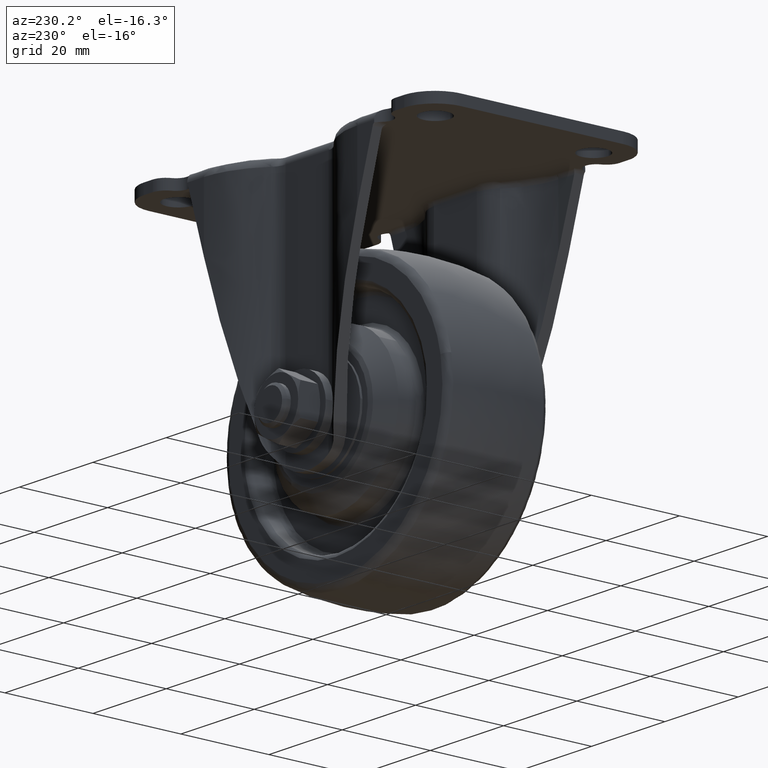
[diagram: clean part render]
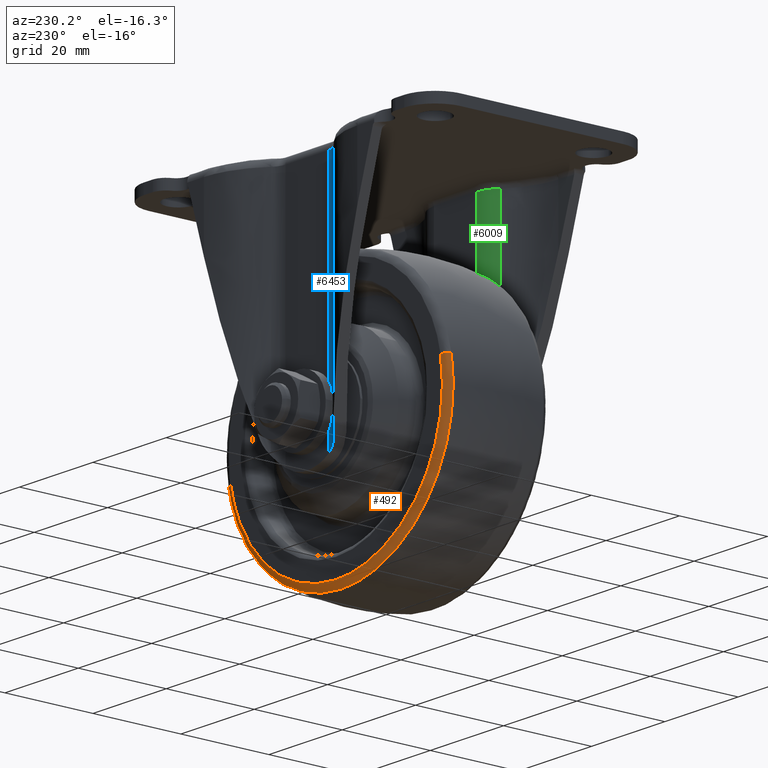
[diagram: same view with three faces highlighted in distinct colors, each labeled with its STEP entity id]
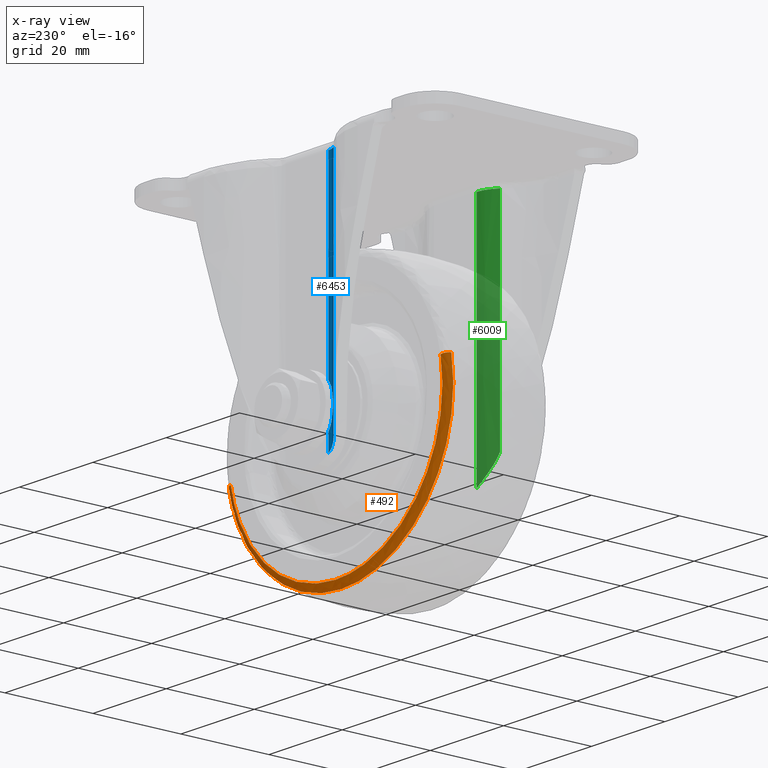
[diagram: x-ray of the same camera — body ghosted, the three highlighted faces saturated]
A machine part, auxiliary view with three faces highlighted in distinct colors.
The next image is the same camera in x-ray (body ghosted, the three faces saturated) — at least one of them is partly hidden behind the body in this view.
Their STEP definitions:

[orange] entity #492 — the highlighted face is a freeform B-spline surface patch.
#260=CARTESIAN_POINT('',(-28.622830873925370,11.500000000000000,5.460098896945127));
#261=VERTEX_POINT('',#260);
#262=CARTESIAN_POINT('',(0.0,11.500000000000000,-29.138960108642578));
#263=VERTEX_POINT('',#262);
#264=CARTESIAN_POINT('',(-28.622830873925370,11.499999999999995,5.460098896945127));
#265=CARTESIAN_POINT('',(-29.138962001786769,11.500000000000000,2.754444772378669));
#266=CARTESIAN_POINT('',(-29.138962001698879,11.500000000000000,0.000001891681499));
#267=CARTESIAN_POINT('',(-29.138962000769126,11.500000000000002,-29.138960108495844));
#268=CARTESIAN_POINT('',(0.0,11.500000000000000,-29.138960108642578));
#276=(BOUNDED_CURVE()B_SPLINE_CURVE(2,(#264,#265,#266,#267,#268),.UNSPECIFIED.,.F.,.U.)B_SPLINE_CURVE_WITH_KNOTS((3,2,3),(0.717838633740406,0.750000000000000,1.0),.UNSPECIFIED.)CURVE()GEOMETRIC_REPRESENTATION_ITEM()RATIONAL_B_SPLINE_CURVE((0.934335795160088,0.962320615659157,1.0,0.707106781186548,1.0))REPRESENTATION_ITEM(''));
#277=EDGE_CURVE('',#261,#263,#276,.T.);
#294=CARTESIAN_POINT('',(28.622830873925370,11.500000000000000,-5.460095114230292));
#295=VERTEX_POINT('',#294);
#311=CARTESIAN_POINT('',(0.0,11.500000000000000,-29.138960108642578));
#312=CARTESIAN_POINT('',(24.105845798279582,11.500000000000000,-29.138960108819948));
#313=CARTESIAN_POINT('',(28.622830873925373,11.499999999999996,-5.460095114230292));
#321=(BOUNDED_CURVE()B_SPLINE_CURVE(2,(#311,#312,#313),.UNSPECIFIED.,.F.,.U.)B_SPLINE_CURVE_WITH_KNOTS((3,3),(0.0,0.217838633740406),.UNSPECIFIED.)CURVE()GEOMETRIC_REPRESENTATION_ITEM()RATIONAL_B_SPLINE_CURVE((1.0,0.744786165527391,0.934335795160088))REPRESENTATION_ITEM(''));
#322=EDGE_CURVE('',#263,#295,#321,.T.);
#364=CARTESIAN_POINT('',(-30.074577081945659,10.256388594107840,5.737034297189368));
#365=VERTEX_POINT('',#364);
#366=CARTESIAN_POINT('',(-28.622830873925370,11.499999999999996,5.460098896945127));
#367=CARTESIAN_POINT('',(-29.862658961563142,11.499999866942064,5.696608753675314));
#368=CARTESIAN_POINT('',(-30.074577081945659,10.256388594107843,5.737034297189368));
#376=(BOUNDED_CURVE()B_SPLINE_CURVE(2,(#366,#367,#368),.UNSPECIFIED.,.F.,.U.)B_SPLINE_CURVE_WITH_KNOTS((3,3),(-1.699374432698718,-0.296092292257900),.UNSPECIFIED.)CURVE()GEOMETRIC_REPRESENTATION_ITEM()RATIONAL_B_SPLINE_CURVE((0.891308979517948,0.682507571634207,0.892662409336264))REPRESENTATION_ITEM(''));
#377=EDGE_CURVE('',#261,#365,#376,.T.);
#394=CARTESIAN_POINT('',(30.074577058850991,10.256388590112140,-5.737030510068976));
#395=VERTEX_POINT('',#394);
#411=CARTESIAN_POINT('',(28.622830873925377,11.500000000000004,-5.460095114230292));
#412=CARTESIAN_POINT('',(29.862658949954081,11.499999864903941,-5.696604968745909));
#413=CARTESIAN_POINT('',(30.074577058850995,10.256388590112142,-5.737030510068976));
#421=(BOUNDED_CURVE()B_SPLINE_CURVE(2,(#411,#412,#413),.UNSPECIFIED.,.F.,.U.)B_SPLINE_CURVE_WITH_KNOTS((3,3),(-1.699374432698722,-0.296092292317341),.UNSPECIFIED.)CURVE()GEOMETRIC_REPRESENTATION_ITEM()RATIONAL_B_SPLINE_CURVE((0.891308979517949,0.682507571643051,0.892662409318461))REPRESENTATION_ITEM(''));
#422=EDGE_CURVE('',#295,#395,#421,.T.);
#427=CARTESIAN_POINT('',(-28.377032285962343,11.496967011210492,6.239816694578594));
#428=CARTESIAN_POINT('',(-28.452662779311627,11.496967011210499,5.843347764111499));
#429=CARTESIAN_POINT('',(-33.971411358845060,11.496967011210490,-23.086945427810413));
#430=CARTESIAN_POINT('',(-5.442232019838624,11.496967011210494,-28.529177447649040));
#431=CARTESIAN_POINT('',(23.086947319167820,11.496967011210490,-33.971409467487668));
#432=CARTESIAN_POINT('',(28.605695898696741,11.496967011210492,-5.041116275589502));
#433=CARTESIAN_POINT('',(28.681326392041591,11.496967011210488,-4.644647345145622));
#434=CARTESIAN_POINT('',(-29.775734164806096,11.588141452286727,6.547376717097933));
#435=CARTESIAN_POINT('',(-29.855092479728796,11.588141452286726,6.131365861585302));
#436=CARTESIAN_POINT('',(-35.645859779517146,11.588141452286726,-24.224899399412319));
#437=CARTESIAN_POINT('',(-5.710479244373711,11.588141452286726,-29.935378643786031));
#438=CARTESIAN_POINT('',(24.224901290769740,11.588141452286726,-35.645857888159753));
#439=CARTESIAN_POINT('',(30.015668590553346,11.588141452286726,-5.289592627187049));
#440=CARTESIAN_POINT('',(30.095026905471411,11.588141452286726,-4.873581771698761));
#441=CARTESIAN_POINT('',(-29.927176420721413,10.162081759263776,6.580677296974322));
#442=CARTESIAN_POINT('',(-30.006938359688164,10.162081759263776,6.162550570125134));
#443=CARTESIAN_POINT('',(-35.827158060498988,10.162081759263778,-24.348109583936889));
#444=CARTESIAN_POINT('',(-5.739523292602339,10.162081759263776,-30.087632876539235));
#445=CARTESIAN_POINT('',(24.348111475294310,10.162081759263778,-35.827156169141567));
#446=CARTESIAN_POINT('',(30.168331176100374,10.162081759263776,-5.316496015104598));
#447=CARTESIAN_POINT('',(30.248093115062442,10.162081759263776,-4.898369288279888));
#455=(BOUNDED_SURFACE()B_SPLINE_SURFACE(2,2,((#427,#434,#441),(#428,#435,#442),(#429,#436,#443),(#430,#437,#444),(#431,#438,#445),(#432,#439,#446),(#433,#440,#447)),.UNSPECIFIED.,.F.,.F.,.U.)B_SPLINE_SURFACE_WITH_KNOTS((3,1,2,1,3),(3,3),(0.0,1.014994859961472,51.764737855590823,102.514480851220200,103.529475711121190),(0.0,2.407700788948126),.UNSPECIFIED.)GEOMETRIC_REPRESENTATION_ITEM()RATIONAL_B_SPLINE_SURFACE(((0.923912507992800,0.668273983381673,0.925418730269164),(0.918563026894694,0.664404656999003,0.920060528098957),(0.645739490904179,0.467069011492106,0.646792217431327),(0.913213545796588,0.660535330616332,0.914702325928751),(0.645739490904179,0.467069011492106,0.646792217431327),(0.918563026894375,0.664404656998772,0.920060528098638),(0.923912507992163,0.668273983381212,0.925418730268525)))REPRESENTATION_ITEM('')SURFACE());
#456=ORIENTED_EDGE('',*,*,#322,.T.);
#457=ORIENTED_EDGE('',*,*,#422,.T.);
#458=CARTESIAN_POINT('',(0.0,10.256388305395840,-30.616886291153921));
#459=VERTEX_POINT('',#458);
#460=CARTESIAN_POINT('',(0.0,10.256388305395840,-30.616886291153921));
#461=CARTESIAN_POINT('',(25.328490959784702,10.256388439002531,-30.616886435352537));
#462=CARTESIAN_POINT('',(30.074577058850991,10.256388590112142,-5.737030510068977));
#470=(BOUNDED_CURVE()B_SPLINE_CURVE(2,(#460,#461,#462),.UNSPECIFIED.,.F.,.U.)B_SPLINE_CURVE_WITH_KNOTS((3,3),(0.0,0.217838636712735),.UNSPECIFIED.)CURVE()GEOMETRIC_REPRESENTATION_ITEM()RATIONAL_B_SPLINE_CURVE((1.0,0.744786162045091,0.934335800332761))REPRESENTATION_ITEM(''));
#471=EDGE_CURVE('',#459,#395,#470,.T.);
#472=ORIENTED_EDGE('',*,*,#471,.F.);
#473=CARTESIAN_POINT('',(-30.074577081945659,10.256388594107843,5.737034297189368));
#474=CARTESIAN_POINT('',(-30.616886075504585,10.256388581819191,2.894149936634093));
#475=CARTESIAN_POINT('',(-30.616886005140390,10.256388567346280,0.000002276259664));
#476=CARTESIAN_POINT('',(-30.616885260764871,10.256388414238813,-30.616886173683636));
#477=CARTESIAN_POINT('',(0.0,10.256388305395840,-30.616886291153921));
#485=(BOUNDED_CURVE()B_SPLINE_CURVE(2,(#473,#474,#475,#476,#477),.UNSPECIFIED.,.F.,.U.)B_SPLINE_CURVE_WITH_KNOTS((3,2,3),(0.717838638042128,0.750000000000000,1.0),.UNSPECIFIED.)CURVE()GEOMETRIC_REPRESENTATION_ITEM()RATIONAL_B_SPLINE_CURVE((0.934335802646271,0.962320620698938,1.0,0.707106781186548,1.0))REPRESENTATION_ITEM(''));
#486=EDGE_CURVE('',#365,#459,#485,.T.);
#487=ORIENTED_EDGE('',*,*,#486,.F.);
#488=ORIENTED_EDGE('',*,*,#377,.F.);
#489=ORIENTED_EDGE('',*,*,#277,.T.);
#490=EDGE_LOOP('',(#456,#457,#472,#487,#488,#489));
#491=FACE_OUTER_BOUND('',#490,.T.);
#492=ADVANCED_FACE('',(#491),#455,.T.);

[blue] entity #6453 — the highlighted face is a freeform B-spline surface patch.
#5345=CARTESIAN_POINT('',(-5.816739000000100,18.0,4.734506036101150));
#5346=VERTEX_POINT('',#5345);
#5347=CARTESIAN_POINT('',(-5.816739000000100,18.0,-4.734506036101110));
#5348=VERTEX_POINT('',#5347);
#5362=CARTESIAN_POINT('',(-5.816739000000100,18.0,4.734506036101110));
#5363=CARTESIAN_POINT('',(-5.953191114297916,18.0,4.566863133374513));
#5364=CARTESIAN_POINT('',(-6.081306417616029,18.006934118123940,4.394696028145683));
#5365=CARTESIAN_POINT('',(-6.321608441511902,18.030153919546219,4.041399217714424));
#5366=CARTESIAN_POINT('',(-6.433792592094890,18.046457141635280,3.860269376614748));
#5367=CARTESIAN_POINT('',(-6.642504222138824,18.084726310160431,3.488911640754547));
#5368=CARTESIAN_POINT('',(-6.739031386322957,18.106702313513360,3.298684375446383));
#5369=CARTESIAN_POINT('',(-6.871967506520002,18.141426386681779,3.006248201329735));
#5370=CARTESIAN_POINT('',(-6.914277083248583,18.153293582661931,2.907606835476086));
#5371=CARTESIAN_POINT('',(-6.994261507954834,18.177019376372581,2.709559198833854));
#5372=CARTESIAN_POINT('',(-7.032031254327816,18.188901987263620,2.609950746802815));
#5373=CARTESIAN_POINT('',(-7.209942098921687,18.247475737193639,2.108942467558933));
#5374=CARTESIAN_POINT('',(-7.317559522974843,18.291388569576419,1.698696431649883));
#5375=CARTESIAN_POINT('',(-7.408492641326100,18.330298151507591,1.172871355740173));
#5376=CARTESIAN_POINT('',(-7.424481781002903,18.337297517896129,1.067052266358492));
#5377=CARTESIAN_POINT('',(-7.451986777233195,18.349494414559722,0.854062835818572));
#5378=CARTESIAN_POINT('',(-7.463520329163599,18.354699910613508,0.746614216293751));
#5379=CARTESIAN_POINT('',(-7.491031193235266,18.367211594006321,0.425118370830121));
#5380=CARTESIAN_POINT('',(-7.500040690051749,18.371433420440660,0.211494240903380));
#5381=CARTESIAN_POINT('',(-7.499959034212766,18.371395541196211,-0.214370360585483));
#5382=CARTESIAN_POINT('',(-7.490866953089177,18.367137554856320,-0.426610819557826));
#5383=CARTESIAN_POINT('',(-7.454732622064049,18.350702691924461,-0.849732919087734));
#5384=CARTESIAN_POINT('',(-7.427690888532755,18.338527640196531,-1.060614642014985));
#5385=CARTESIAN_POINT('',(-7.373478334112706,18.315308818527718,-1.375932809036382));
#5386=CARTESIAN_POINT('',(-7.353129309560440,18.306748819537450,-1.480871412149996));
#5387=CARTESIAN_POINT('',(-7.307803136333410,18.288217785666902,-1.690415364055679));
#5388=CARTESIAN_POINT('',(-7.282791288599532,18.278235148414190,-1.795105017692332));
#5389=CARTESIAN_POINT('',(-7.201522964132941,18.246901937557581,-2.105675879248216));
#5390=CARTESIAN_POINT('',(-7.138853570794026,18.224076501402941,-2.309067560378710));
#5391=CARTESIAN_POINT('',(-6.925900295182709,18.153949812662219,-2.908951411714483));
#5392=CARTESIAN_POINT('',(-6.750913984023052,18.104787435234879,-3.295227302571222));
#5393=CARTESIAN_POINT('',(-6.489085269015139,18.056551542921611,-3.762078220034280));
#5394=CARTESIAN_POINT('',(-6.434440984814290,18.047569199235340,-3.854806146876099));
#5395=CARTESIAN_POINT('',(-6.321291075587495,18.031537806669050,-4.037677594205553));
#5396=CARTESIAN_POINT('',(-6.262798196495085,18.024485548965501,-4.127820848803968));
#5397=CARTESIAN_POINT('',(-6.081559606207798,18.006930269181911,-4.394407536348077));
#5398=CARTESIAN_POINT('',(-5.953067068110242,18.0,-4.567015534552620));
#5399=CARTESIAN_POINT('',(-5.816739000000100,18.0,-4.734506036101110));
#5400=B_SPLINE_CURVE_WITH_KNOTS('',3,(#5362,#5363,#5364,#5365,#5366,#5367,#5368,#5369,#5370,#5371,#5372,#5373,#5374,#5375,#5376,#5377,#5378,#5379,#5380,#5381,#5382,#5383,#5384,#5385,#5386,#5387,#5388,#5389,#5390,#5391,#5392,#5393,#5394,#5395,#5396,#5397,#5398,#5399),.UNSPECIFIED.,.F.,.U.,(4,2,2,2,2,2,2,2,2,2,2,2,2,2,2,2,2,2,4),(0.0,0.062500000000000,0.125000000000000,0.187500000000000,0.218750000000000,0.249999999999999,0.374999999999999,0.406250000000000,0.437500000000000,0.500000000000000,0.562500000000000,0.625000000000000,0.656250000000000,0.687500000000000,0.750000000000000,0.875000000000000,0.906250000000000,0.937500000000000,1.0),.UNSPECIFIED.);
#5401=EDGE_CURVE('',#5346,#5348,#5400,.T.);
#6346=CARTESIAN_POINT('',(-8.562133521472699,19.090909139903399,46.500000000000000));
#6347=VERTEX_POINT('',#6346);
#6361=CARTESIAN_POINT('',(-8.562133521472541,19.090909139903651,-6.077817828832770));
#6362=VERTEX_POINT('',#6361);
#6363=CARTESIAN_POINT('',(-8.562133521472541,19.090909139903651,-6.077817828832770));
#6364=CARTESIAN_POINT('',(-8.562133521472699,19.090909139903399,46.500000000000000));
#6365=QUASI_UNIFORM_CURVE('',1,(#6363,#6364),.UNSPECIFIED.,.F.,.U.);
#6366=EDGE_CURVE('',#6362,#6347,#6365,.T.);
#6387=CARTESIAN_POINT('',(-5.781832858006608,18.000152307743321,-10.122638642526720));
#6388=CARTESIAN_POINT('',(-5.781832858006608,18.000152307743321,47.915565966063170));
#6389=CARTESIAN_POINT('',(-7.477919665576843,17.985350782412006,-10.122638642526717));
#6390=CARTESIAN_POINT('',(-7.477919665576843,17.985350782412006,47.915565966063170));
#6391=CARTESIAN_POINT('',(-8.667663561442952,19.194250698126812,-10.122638642526715));
#6392=CARTESIAN_POINT('',(-8.667663561442952,19.194250698126812,47.915565966063170));
#6400=(BOUNDED_SURFACE()B_SPLINE_SURFACE(1,2,((#6387,#6389,#6391),(#6388,#6390,#6392)),.UNSPECIFIED.,.F.,.F.,.U.)B_SPLINE_SURFACE_WITH_KNOTS((2,2),(3,3),(0.0,58.038204608589893),(0.0,3.252148872393323),.UNSPECIFIED.)GEOMETRIC_REPRESENTATION_ITEM()RATIONAL_B_SPLINE_SURFACE(((1.0,0.918948723321962,0.996308716064249),(1.0,0.918948723321962,0.996308716064249)))REPRESENTATION_ITEM('')SURFACE());
#6401=CARTESIAN_POINT('',(-5.816739000000100,18.0,46.500000000000000));
#6402=VERTEX_POINT('',#6401);
#6403=CARTESIAN_POINT('',(-5.816739000000100,18.0,4.734506036101150));
#6404=CARTESIAN_POINT('',(-5.816739000000100,18.0,46.500000000000000));
#6405=QUASI_UNIFORM_CURVE('',1,(#6403,#6404),.UNSPECIFIED.,.F.,.U.);
#6406=EDGE_CURVE('',#5346,#6402,#6405,.T.);
#6407=ORIENTED_EDGE('',*,*,#6406,.F.);
#6408=ORIENTED_EDGE('',*,*,#5401,.T.);
#6409=CARTESIAN_POINT('',(-5.816739000000100,18.0,-8.741598675635819));
#6410=VERTEX_POINT('',#6409);
#6411=CARTESIAN_POINT('',(-5.816739000000100,18.0,-8.741598675635819));
#6412=CARTESIAN_POINT('',(-5.816739000000100,18.0,-4.734506036101110));
#6413=QUASI_UNIFORM_CURVE('',1,(#6411,#6412),.UNSPECIFIED.,.F.,.U.);
#6414=EDGE_CURVE('',#6410,#5348,#6413,.T.);
#6415=ORIENTED_EDGE('',*,*,#6414,.F.);
#6416=CARTESIAN_POINT('',(-5.816739000000099,18.0,-8.741598675635816));
#6417=CARTESIAN_POINT('',(-6.097586419849904,18.000000000000011,-8.554720256629590));
#6418=CARTESIAN_POINT('',(-6.367558042326900,18.029250935628991,-8.355607391114742));
#6419=CARTESIAN_POINT('',(-6.691996119041254,18.096371484769929,-8.091612082044597));
#6420=CARTESIAN_POINT('',(-6.756256952288156,18.111356124847269,-8.038026670874695));
#6421=CARTESIAN_POINT('',(-6.882407172253216,18.144018086520489,-7.930280719013197));
#6422=CARTESIAN_POINT('',(-6.944439619275942,18.161722071576730,-7.876006110301183));
#6423=CARTESIAN_POINT('',(-7.127544381044616,18.218712676459219,-7.712001465075260));
#6424=CARTESIAN_POINT('',(-7.245629436542664,18.261866161368289,-7.601090496094059));
#6425=CARTESIAN_POINT('',(-7.588787787226624,18.405374428907230,-7.263827542450322));
#6426=CARTESIAN_POINT('',(-7.802819000219403,18.519634102909961,-7.032934534242283));
#6427=CARTESIAN_POINT('',(-8.053713509563671,18.683445111621889,-6.737485305211571));
#6428=CARTESIAN_POINT('',(-8.103055657193439,18.717268384043269,-6.678054684816929));
#6429=CARTESIAN_POINT('',(-8.200094155509259,18.787028023454049,-6.558534988681759));
#6430=CARTESIAN_POINT('',(-8.247817610898681,18.822991432522599,-6.498406384132315));
#6431=CARTESIAN_POINT('',(-8.387680673619670,18.933346202847702,-6.318222568200252));
#6432=CARTESIAN_POINT('',(-8.476824530599671,19.010400659218920,-6.197996975802171));
#6433=CARTESIAN_POINT('',(-8.562133488754222,19.090909231199809,-6.077817874924640));
#6434=B_SPLINE_CURVE_WITH_KNOTS('',3,(#6416,#6417,#6418,#6419,#6420,#6421,#6422,#6423,#6424,#6425,#6426,#6427,#6428,#6429,#6430,#6431,#6432,#6433),.UNSPECIFIED.,.F.,.U.,(4,2,2,2,2,2,2,2,4),(0.0,0.249999999999999,0.312499999999999,0.374999999999998,0.499999999999999,0.749999999999999,0.812499999999999,0.875000000000000,1.0),.UNSPECIFIED.);
#6435=EDGE_CURVE('',#6410,#6362,#6434,.T.);
#6436=ORIENTED_EDGE('',*,*,#6435,.T.);
#6437=ORIENTED_EDGE('',*,*,#6366,.T.);
#6438=CARTESIAN_POINT('',(-8.562133521472699,19.090909139903399,46.500000000000000));
#6439=CARTESIAN_POINT('',(-7.406177924314576,17.999999999999993,46.500000000000000));
#6440=CARTESIAN_POINT('',(-5.816739000000100,18.0,46.500000000000000));
#6448=(BOUNDED_CURVE()B_SPLINE_CURVE(2,(#6438,#6439,#6440),.UNSPECIFIED.,.F.,.U.)CURVE()GEOMETRIC_REPRESENTATION_ITEM()QUASI_UNIFORM_CURVE()RATIONAL_B_SPLINE_CURVE((1.0,0.929320369643574,1.0))REPRESENTATION_ITEM(''));
#6449=EDGE_CURVE('',#6347,#6402,#6448,.T.);
#6450=ORIENTED_EDGE('',*,*,#6449,.T.);
#6451=EDGE_LOOP('',(#6407,#6408,#6415,#6436,#6437,#6450));
#6452=FACE_OUTER_BOUND('',#6451,.T.);
#6453=ADVANCED_FACE('',(#6452),#6400,.F.);

[green] entity #6009 — the highlighted face is a freeform B-spline surface patch.
#5449=CARTESIAN_POINT('',(-10.140735067484700,-17.418181801033800,-2.749401661091835));
#5450=VERTEX_POINT('',#5449);
#5464=CARTESIAN_POINT('',(-10.030687000000000,-17.316770104586301,-3.104079999999895));
#5465=VERTEX_POINT('',#5464);
#5466=CARTESIAN_POINT('',(-10.030687000000020,-17.316770104586290,-3.104079999999905));
#5467=CARTESIAN_POINT('',(-10.086313305910876,-17.366822390247084,-2.924799743372129));
#5468=CARTESIAN_POINT('',(-10.140735067484689,-17.418181801033800,-2.749401661092065));
#5476=(BOUNDED_CURVE()B_SPLINE_CURVE(2,(#5466,#5467,#5468),.UNSPECIFIED.,.F.,.U.)CURVE()GEOMETRIC_REPRESENTATION_ITEM()QUASI_UNIFORM_CURVE()RATIONAL_B_SPLINE_CURVE((1.0,0.999929466806100,1.0))REPRESENTATION_ITEM(''));
#5477=EDGE_CURVE('',#5465,#5450,#5476,.T.);
#5922=CARTESIAN_POINT('',(-10.140735067484700,-17.418181801033800,45.200000000000003));
#5923=VERTEX_POINT('',#5922);
#5937=CARTESIAN_POINT('',(-10.140735067484700,-17.418181801033800,-2.749401661091835));
#5938=CARTESIAN_POINT('',(-10.140735067484700,-17.418181801033800,45.200000000000003));
#5939=QUASI_UNIFORM_CURVE('',1,(#5937,#5938),.UNSPECIFIED.,.F.,.U.);
#5940=EDGE_CURVE('',#5450,#5923,#5939,.T.);
#5946=CARTESIAN_POINT('',(-10.305525227584926,-17.579502493718074,-10.090138642526711));
#5947=CARTESIAN_POINT('',(-10.305525227584926,-17.579502493718074,46.582253466063172));
#5948=CARTESIAN_POINT('',(-8.357982511564286,-15.601873751956932,-10.090138642526716));
#5949=CARTESIAN_POINT('',(-8.357982511564286,-15.601873751956932,46.582253466063165));
#5950=CARTESIAN_POINT('',(-5.584275799337318,-15.704290281442638,-10.090138642526711));
#5951=CARTESIAN_POINT('',(-5.584275799337318,-15.704290281442638,46.582253466063172));
#5959=(BOUNDED_SURFACE()B_SPLINE_SURFACE(1,2,((#5946,#5948,#5950),(#5947,#5949,#5951)),.UNSPECIFIED.,.F.,.F.,.U.)B_SPLINE_SURFACE_WITH_KNOTS((2,2),(3,3),(0.0,56.672392108589889),(0.0,5.305141189946998),.UNSPECIFIED.)GEOMETRIC_REPRESENTATION_ITEM()RATIONAL_B_SPLINE_SURFACE(((0.999764905440507,0.911008254473278,0.991261946042070),(0.999764905440507,0.911008254473278,0.991261946042070)))REPRESENTATION_ITEM('')SURFACE());
#5960=ORIENTED_EDGE('',*,*,#5940,.T.);
#5961=CARTESIAN_POINT('',(-5.816739000000100,-15.699999999999999,45.200000000000003));
#5962=VERTEX_POINT('',#5961);
#5963=CARTESIAN_POINT('',(-10.140735067484689,-17.418181801033811,45.200000000000003));
#5964=CARTESIAN_POINT('',(-8.320105140388382,-15.699999999999998,45.199999999999996));
#5965=CARTESIAN_POINT('',(-5.816739000000100,-15.699999999999999,45.200000000000003));
#5973=(BOUNDED_CURVE()B_SPLINE_CURVE(2,(#5963,#5964,#5965),.UNSPECIFIED.,.F.,.U.)CURVE()GEOMETRIC_REPRESENTATION_ITEM()QUASI_UNIFORM_CURVE()RATIONAL_B_SPLINE_CURVE((1.0,0.929320378016815,1.0))REPRESENTATION_ITEM(''));
#5974=EDGE_CURVE('',#5923,#5962,#5973,.T.);
#5975=ORIENTED_EDGE('',*,*,#5974,.T.);
#5976=CARTESIAN_POINT('',(-5.816739000000100,-15.699999999999999,-8.741598675635819));
#5977=VERTEX_POINT('',#5976);
#5978=CARTESIAN_POINT('',(-5.816739000000100,-15.699999999999999,-8.741598675635819));
#5979=CARTESIAN_POINT('',(-5.816739000000100,-15.699999999999999,45.200000000000003));
#5980=QUASI_UNIFORM_CURVE('',1,(#5978,#5979),.UNSPECIFIED.,.F.,.U.);
#5981=EDGE_CURVE('',#5977,#5962,#5980,.T.);
#5982=ORIENTED_EDGE('',*,*,#5981,.F.);
#5983=CARTESIAN_POINT('',(-5.816739000000100,-15.699999999999999,-8.741598675635819));
#5984=CARTESIAN_POINT('',(-6.077083029214967,-15.699999999999999,-8.568363398618123));
#5985=CARTESIAN_POINT('',(-6.326001077640858,-15.716023109598050,-8.386007536267952));
#5986=CARTESIAN_POINT('',(-6.803076671703376,-15.773054406837350,-8.003846564720085));
#5987=CARTESIAN_POINT('',(-7.031223517797604,-15.814103809646390,-7.804038486511978));
#5988=CARTESIAN_POINT('',(-7.467953403582272,-15.916105251140200,-7.387204668757611));
#5989=CARTESIAN_POINT('',(-7.676531659183917,-15.977081974443680,-7.170178931550387));
#5990=CARTESIAN_POINT('',(-7.975146495126796,-16.080340410596889,-6.831521751227343));
#5991=CARTESIAN_POINT('',(-8.072304759339735,-16.116730462503011,-6.716445629340366));
#5992=CARTESIAN_POINT('',(-8.261879525569958,-16.192959001715131,-6.481827884517778));
#5993=CARTESIAN_POINT('',(-8.353532969768361,-16.232489456571770,-6.363229807611974));
#5994=CARTESIAN_POINT('',(-8.619358018156127,-16.354352765758030,-6.003789969744257));
#5995=CARTESIAN_POINT('',(-8.784516720788620,-16.439989170856581,-5.759199805978022));
#5996=CARTESIAN_POINT('',(-9.092471405937626,-16.615670680122591,-5.259570339409748));
#5997=CARTESIAN_POINT('',(-9.235262036873962,-16.705733902510030,-5.004534208858614));
#5998=CARTESIAN_POINT('',(-9.499359695450371,-16.885915714606352,-4.483033896125976));
#5999=CARTESIAN_POINT('',(-9.620666986113772,-16.976051066712209,-4.216575426898825));
#6000=CARTESIAN_POINT('',(-9.841899651003811,-17.151493761844399,-3.670661091410856));
#6001=CARTESIAN_POINT('',(-9.941831245865794,-17.236818110514260,-3.391214058621190));
#6002=CARTESIAN_POINT('',(-10.030687257551300,-17.316770336329650,-3.104080079701280));
#6003=B_SPLINE_CURVE_WITH_KNOTS('',3,(#5983,#5984,#5985,#5986,#5987,#5988,#5989,#5990,#5991,#5992,#5993,#5994,#5995,#5996,#5997,#5998,#5999,#6000,#6001,#6002),.UNSPECIFIED.,.F.,.U.,(4,2,2,2,2,2,2,2,2,4),(0.0,0.125000000000000,0.250000000000000,0.374999999999999,0.437500000000000,0.500000000000000,0.625000000000000,0.750000000000000,0.875000000000000,1.0),.UNSPECIFIED.);
#6004=EDGE_CURVE('',#5977,#5465,#6003,.T.);
#6005=ORIENTED_EDGE('',*,*,#6004,.T.);
#6006=ORIENTED_EDGE('',*,*,#5477,.T.);
#6007=EDGE_LOOP('',(#5960,#5975,#5982,#6005,#6006));
#6008=FACE_OUTER_BOUND('',#6007,.T.);
#6009=ADVANCED_FACE('',(#6008),#5959,.T.);